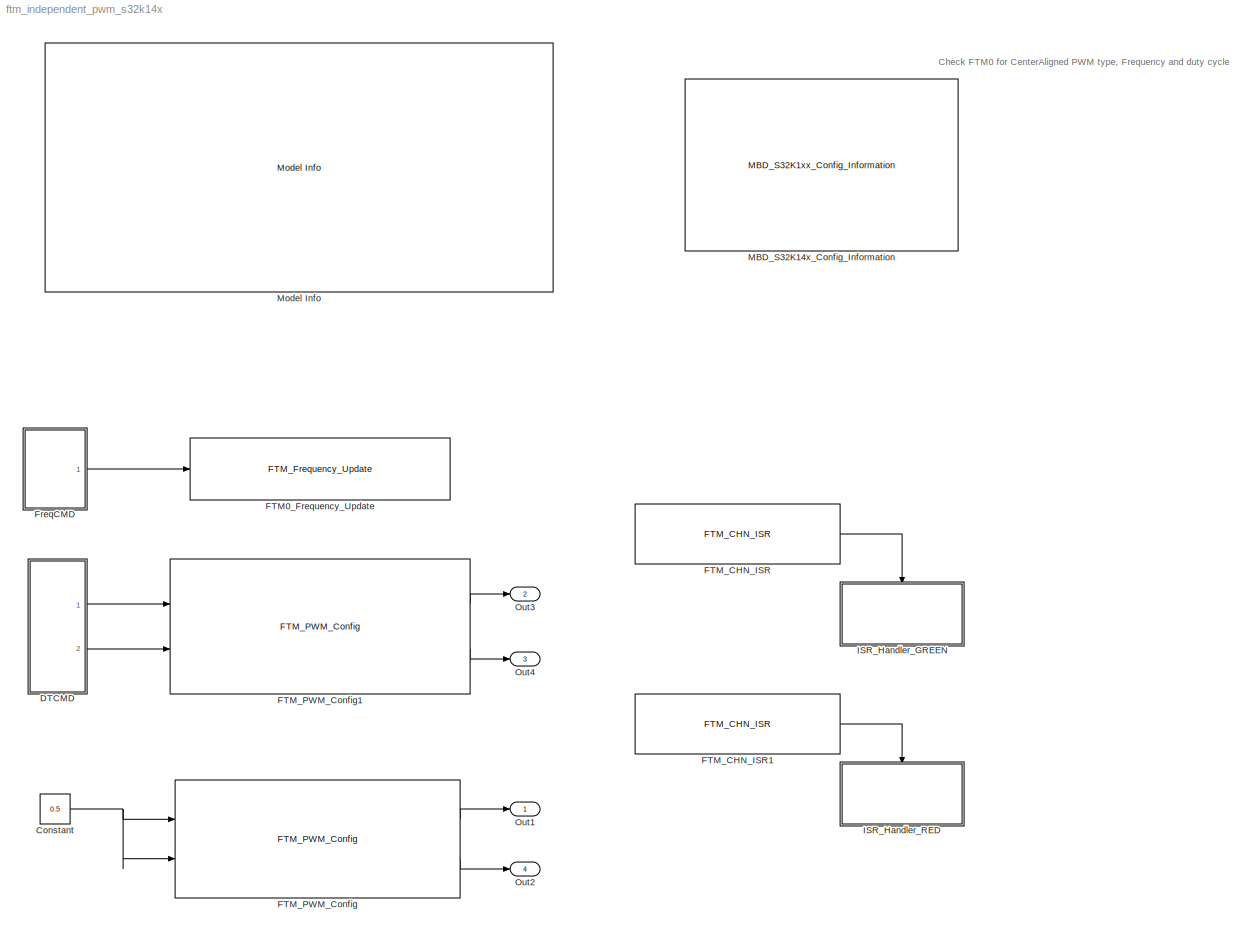
MODEL ftm_independent_pwm_s32k14x
KIND model
CONFIG InitFcn = mbd_s32k_consistency_checks(bdroot(gcs));
BLOCK [Constant] Constant
  OutDataTypeStr = single
  SID = 176
  Value = 0.5
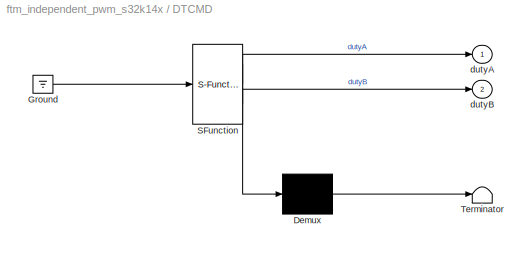
BLOCK [SubSystem] DTCMD
  ErrorFcn = Stateflow.Translate.translate
  PermitHierarchicalResolution = ExplicitOnly
  Ports = [0, 2]
  Priority = 0
  RequestExecContextInheritance = off
  SFBlockType = Chart
  SID = 91
  TreatAsAtomicUnit = on
  Variant = off
BLOCK [Demux] DTCMD/ Demux 
  Outputs = 1
  Ports = [1, 1]
  SID = 91::69
BLOCK [Ground] DTCMD/ Ground 
  SID = 91::71
BLOCK [S-Function] DTCMD/ SFunction 
  EnableBusSupport = off
  FunctionName = sf_sfun
  PortCounts = [1 3]
  Ports = [1, 3]
  SFcnIsStateOwnerBlock = off
  SFunctionDeploymentMode = off
  SID = 91::68
  Tag = Stateflow S-Function ftm_independent_pwm_s32k14x 3
BLOCK [Terminator] DTCMD/ Terminator 
  SID = 91::70
BLOCK [Outport] DTCMD/dutyA
  IconDisplay = Port number
  SID = 91::6
BLOCK [Outport] DTCMD/dutyB
  IconDisplay = Port number
  Port = 2
  SID = 91::7
BLOCK [Reference] FTM0_Frequency_Update  REF=mbd_s32k1xx_ec_toolbox/Motor Control Blocks/FTM Blocks/FTM_Frequency_Update
  Ports = [1]
  Priority = 1
  SID = 93
  SourceBlock = mbd_s32k1xx_ec_toolbox/Motor Control Blocks/FTM Blocks/FTM_Frequency_Update
  SourceType = FTM_s32k_freq_update_block
  ftmModule = 0
  ftmPwmUnits = Hz
  mcuTargetUpdate = on
BLOCK [Reference] FTM_CHN_ISR  REF=mbd_s32k1xx_ec_toolbox/Motor Control Blocks/FTM Blocks/FTM_CHN_ISR
  Ports = [0, 1]
  Priority = 10
  SID = 104
  SourceBlock = mbd_s32k1xx_ec_toolbox/Motor Control Blocks/FTM Blocks/FTM_CHN_ISR
  SourceType = FTM_s32k_chn_isr_block
  channel = 0
  ftmModule = 0
  isrlevel = 1
  mcuTargetUpdate = on
BLOCK [Reference] FTM_CHN_ISR1  REF=mbd_s32k1xx_ec_toolbox/Motor Control Blocks/FTM Blocks/FTM_CHN_ISR
  Ports = [0, 1]
  Priority = 10
  SID = 112
  SourceBlock = mbd_s32k1xx_ec_toolbox/Motor Control Blocks/FTM Blocks/FTM_CHN_ISR
  SourceType = FTM_s32k_chn_isr_block
  channel = 2
  ftmModule = 3
  isrlevel = 2
  mcuTargetUpdate = on
BLOCK [Reference] FTM_PWM_Config  REF=mbd_s32k1xx_ec_toolbox/Motor Control Blocks/FTM Blocks/FTM_PWM_Config
  Ports = [2, 2]
  Priority = 1
  SID = 137
  SourceBlock = mbd_s32k1xx_ec_toolbox/Motor Control Blocks/FTM Blocks/FTM_PWM_Config
  SourceType = FTM_s32k_pwm_config_block
  chTrigger0 = on
  chTrigger1 = off
  chTrigger2 = on
  chTrigger3 = off
  chTrigger4 = off
  chTrigger5 = off
  chTrigger6 = off
  chTrigger7 = off
  chan0En = off
  chan0Type = Independent
  chan2En = on
  chan2Type = Independent
  chan4En = off
  chan4Type = Independent
  chan6En = off
  chan6Type = Independent
  chnMatch0 = off
  chnMatch1 = off
  chnMatch2 = off
  chnMatch3 = off
  chnMatch4 = off
  chnMatch5 = off
  chnMatch6 = off
  chnMatch7 = off
  deadtimeNs = 1000
  deadtimePrescaler = Divide by 4
  deadtimeTicks = 20
  deadtimeUnits = Nanoseconds
  dutyCycleCh0 = 0.5
  dutyCycleCh1 = 0.1
  dutyCycleCh2 = 0.25
  dutyCycleCh3 = 0.25
  dutyCycleCh4 = 0.25
  dutyCycleCh5 = 0.25
  dutyCycleCh6 = 0.25
  dutyCycleCh7 = 0.25
  dutyCycleSim = on
  fault_disen_0 = off
  fault_disen_1 = off
  fault_disen_2 = off
  fault_disen_3 = off
  fault_filter_0 = off
  fault_filter_1 = off
  fault_filter_2 = off
  fault_filter_3 = off
  fault_pin_0 = None
  fault_pin_1 = None
  fault_pin_2 = None
  fault_pin_3 = None
  fault_polarity_0 = Active Low
  fault_polarity_1 = Active high
  fault_polarity_2 = Active high
  fault_polarity_3 = Active high
  ftmMode = Edge-Aligned PWM
  ftmModule = 3
  ftmPeriod = 25000
  ftmPrescaler = Divide by 64
  ftmPwmUnits = Hz
  ftmSourceClock = 80 MHz
  initTrigger = off
  mcuTargetUpdate = on
  outFrequency = 50
  outputComplem0 = Main duplicated
  outputComplem2 = Main duplicated
  outputComplem4 = Main duplicated
  outputComplem6 = Main duplicated
  outputLevel0 = Low
  outputLevel1 = Low
  outputLevel2 = Low
  outputLevel3 = Low
  outputLevel4 = Low
  outputLevel5 = Low
  outputLevel6 = Low
  outputLevel7 = Low
  pinFtmCh0 = PTA2: [FTM3_CH0 | FTM Channel]
  pinFtmCh1 = None
  pinFtmCh2 = PTB10: [FTM3_CH2 | FTM Channel]
  pinFtmCh3 = PTB11: [FTM3_CH3 | FTM Channel]
  pinFtmCh4 = PTC10: [FTM3_CH4 | FTM Channel]
  pinFtmCh5 = None
  pinFtmCh6 = PTC12: [FTM3_CH6 | FTM Channel]
  pinFtmCh7 = None
  pinPolCh0 = Active High
  pinPolCh1 = Active Low
  pinPolCh2 = Active High
  pinPolCh3 = Active Low
  pinPolCh4 = Active High
  pinPolCh5 = Active Low
  pinPolCh6 = Active Low
  pinPolCh7 = Active Low
  pwmFaultClearing = Automatic Fault control for all channels
  pwmFaultFilterValue = 2
  pwmFaultInterrupt = off
  pwmFaultPinState = Safe Value
  pwmFaultPriority = 0
  pwmFaultProtection = off
  pwmSyncAutoClear = on
  pwmSyncCounterInitial = System Clock
  pwmSyncHwRouting = TRGMUX_FTM7
  pwmSyncInvert = System Clock
  pwmSyncMaxLoad = on
  pwmSyncMinLoad = on
  pwmSyncOutControl = System Clock
  pwmSyncOutMask = System Clock
  pwmSyncPoints = Update now
  pwmSyncTrg = Software trigger
  pwmSyncTrg0 = on
  pwmSyncTrg1 = on
  pwmSyncTrg2 = on
  reloadEnable = off
  reloadFrequency = 0
  reloadHCR = 0
  reloadHalfCycle = off
  reloadPriority = 15
  showAdvOpt = on
  startAfterInit = on
  swcontrol_enable = off
BLOCK [Reference] FTM_PWM_Config1  REF=mbd_s32k1xx_ec_toolbox/Motor Control Blocks/FTM Blocks/FTM_PWM_Config
  Ports = [2, 2]
  Priority = 1
  SID = 168
  SourceBlock = mbd_s32k1xx_ec_toolbox/Motor Control Blocks/FTM Blocks/FTM_PWM_Config
  SourceType = FTM_s32k_pwm_config_block
  chTrigger0 = on
  chTrigger1 = off
  chTrigger2 = off
  chTrigger3 = off
  chTrigger4 = off
  chTrigger5 = off
  chTrigger6 = off
  chTrigger7 = off
  chan0En = on
  chan0Type = Independent
  chan2En = off
  chan2Type = Independent
  chan4En = off
  chan4Type = Independent
  chan6En = off
  chan6Type = Independent
  chnMatch0 = off
  chnMatch1 = off
  chnMatch2 = off
  chnMatch3 = off
  chnMatch4 = off
  chnMatch5 = off
  chnMatch6 = off
  chnMatch7 = off
  deadtimeNs = 1000
  deadtimePrescaler = Divide by 4
  deadtimeTicks = 20
  deadtimeUnits = Nanoseconds
  dutyCycleCh0 = 0.5
  dutyCycleCh1 = 0.1
  dutyCycleCh2 = 0
  dutyCycleCh3 = 0
  dutyCycleCh4 = 0.25
  dutyCycleCh5 = 0.25
  dutyCycleCh6 = 0.25
  dutyCycleCh7 = 0.25
  dutyCycleSim = on
  fault_disen_0 = off
  fault_disen_1 = off
  fault_disen_2 = off
  fault_disen_3 = off
  fault_filter_0 = off
  fault_filter_1 = off
  fault_filter_2 = off
  fault_filter_3 = off
  fault_pin_0 = None
  fault_pin_1 = None
  fault_pin_2 = None
  fault_pin_3 = None
  fault_polarity_0 = Active Low
  fault_polarity_1 = Active high
  fault_polarity_2 = Active high
  fault_polarity_3 = Active high
  ftmMode = Center-Aligned PWM
  ftmModule = 0
  ftmPeriod = 16000
  ftmPrescaler = Divide by 1
  ftmPwmUnits = Hz
  ftmSourceClock = 80 MHz
  initTrigger = off
  mcuTargetUpdate = on
  outFrequency = 5000
  outputComplem0 = Main duplicated
  outputComplem2 = Main duplicated
  outputComplem4 = Main duplicated
  outputComplem6 = Main duplicated
  outputLevel0 = Low
  outputLevel1 = Low
  outputLevel2 = Low
  outputLevel3 = Low
  outputLevel4 = Low
  outputLevel5 = Low
  outputLevel6 = Low
  outputLevel7 = Low
  pinFtmCh0 = PTC0: [FTM0_CH0 | FTM Channel]
  pinFtmCh1 = PTC1: [FTM0_CH1 | FTM Channel]
  pinFtmCh2 = PTB14: [FTM0_CH2 | FTM Channel]
  pinFtmCh3 = None
  pinFtmCh4 = PTB4: [FTM0_CH4 | FTM Channel]
  pinFtmCh5 = None
  pinFtmCh6 = PTA17: [FTM0_CH6 | FTM Channel]
  pinFtmCh7 = None
  pinPolCh0 = Active High
  pinPolCh1 = Active Low
  pinPolCh2 = Active High
  pinPolCh3 = Active Low
  pinPolCh4 = Active High
  pinPolCh5 = Active Low
  pinPolCh6 = Active Low
  pinPolCh7 = Active Low
  pwmFaultClearing = Automatic Fault control for all channels
  pwmFaultFilterValue = 2
  pwmFaultInterrupt = off
  pwmFaultPinState = Safe Value
  pwmFaultPriority = 0
  pwmFaultProtection = off
  pwmSyncAutoClear = on
  pwmSyncCounterInitial = System Clock
  pwmSyncHwRouting = TRGMUX_FTM7
  pwmSyncInvert = System Clock
  pwmSyncMaxLoad = on
  pwmSyncMinLoad = on
  pwmSyncOutControl = System Clock
  pwmSyncOutMask = System Clock
  pwmSyncPoints = Update now
  pwmSyncTrg = Software trigger
  pwmSyncTrg0 = on
  pwmSyncTrg1 = on
  pwmSyncTrg2 = on
  reloadEnable = off
  reloadFrequency = 0
  reloadHCR = 0
  reloadHalfCycle = off
  reloadPriority = 15
  showAdvOpt = on
  startAfterInit = on
  swcontrol_enable = off
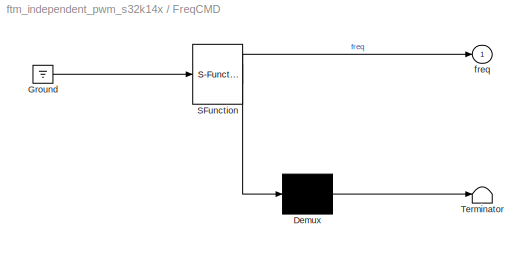
BLOCK [SubSystem] FreqCMD
  ErrorFcn = Stateflow.Translate.translate
  PermitHierarchicalResolution = ExplicitOnly
  Ports = [0, 1]
  Priority = 0
  RequestExecContextInheritance = off
  SFBlockType = Chart
  SID = 92
  TreatAsAtomicUnit = on
  Variant = off
BLOCK [Demux] FreqCMD/ Demux 
  Outputs = 1
  Ports = [1, 1]
  SID = 92::68
BLOCK [Ground] FreqCMD/ Ground 
  SID = 92::70
BLOCK [S-Function] FreqCMD/ SFunction 
  EnableBusSupport = off
  FunctionName = sf_sfun
  PortCounts = [1 2]
  Ports = [1, 2]
  SFcnIsStateOwnerBlock = off
  SFunctionDeploymentMode = off
  SID = 92::67
  Tag = Stateflow S-Function ftm_independent_pwm_s32k14x 2
BLOCK [Terminator] FreqCMD/ Terminator 
  SID = 92::69
BLOCK [Outport] FreqCMD/freq
  IconDisplay = Port number
  SID = 92::5
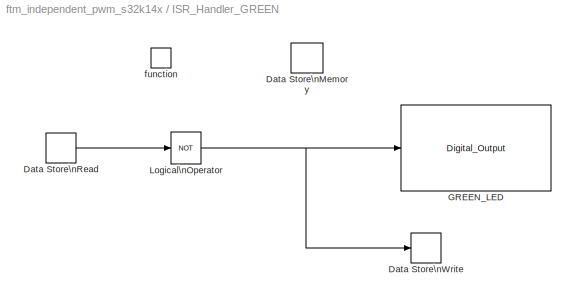
BLOCK [SubSystem] ISR_Handler_GREEN
  Ports = [0, 0, 0, 1]
  RequestExecContextInheritance = off
  SID = 105
  Variant = off
BLOCK [DataStoreMemory] ISR_Handler_GREEN/Data Store\nMemory
  OutDataTypeStr = boolean
  ReadBeforeWriteMsg = warning
  SID = 107
  ShowAdditionalParam = off
  WriteAfterReadMsg = warning
  WriteAfterWriteMsg = warning
BLOCK [DataStoreRead] ISR_Handler_GREEN/Data Store\nRead
  Ports = [0, 1]
  SID = 108
BLOCK [DataStoreWrite] ISR_Handler_GREEN/Data Store\nWrite
  Ports = [1]
  SID = 109
BLOCK [Reference] ISR_Handler_GREEN/GREEN_LED  REF=mbd_s32k1xx_ec_toolbox/GPIO Blocks/Digital_Output
  Ports = [1]
  SID = 110
  SourceBlock = mbd_s32k1xx_ec_toolbox/GPIO Blocks/Digital_Output
  SourceType = gpio_s32k_output
  drive_strength = High
  gpio_pin = PTD16: [PTD16 | Port D I/O]
  init_val = Low
BLOCK [Logic] ISR_Handler_GREEN/Logical\nOperator
  AllPortsSameDT = off
  Operator = NOT
  OutDataTypeStr = boolean
  Ports = [1, 1]
  SID = 111
BLOCK [TriggerPort] ISR_Handler_GREEN/function
  Ports = []
  SID = 106
  StatesWhenEnabling = held
  TriggerType = function-call
  VariantControl = Variant
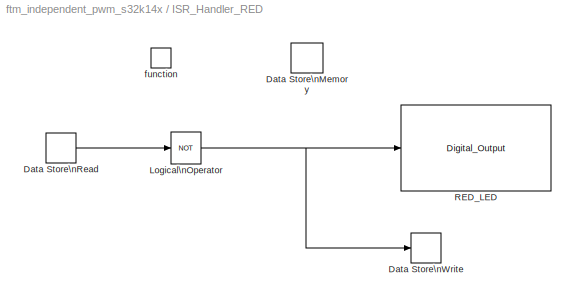
BLOCK [SubSystem] ISR_Handler_RED
  Ports = [0, 0, 0, 1]
  RequestExecContextInheritance = off
  SID = 113
  Variant = off
BLOCK [DataStoreMemory] ISR_Handler_RED/Data Store\nMemory
  DataStoreName = B
  OutDataTypeStr = boolean
  ReadBeforeWriteMsg = warning
  SID = 115
  ShowAdditionalParam = off
  WriteAfterReadMsg = warning
  WriteAfterWriteMsg = warning
BLOCK [DataStoreRead] ISR_Handler_RED/Data Store\nRead
  DataStoreName = B
  Ports = [0, 1]
  SID = 116
BLOCK [DataStoreWrite] ISR_Handler_RED/Data Store\nWrite
  DataStoreName = B
  Ports = [1]
  SID = 117
BLOCK [Logic] ISR_Handler_RED/Logical\nOperator
  AllPortsSameDT = off
  Operator = NOT
  OutDataTypeStr = boolean
  Ports = [1, 1]
  SID = 119
BLOCK [Reference] ISR_Handler_RED/RED_LED  REF=mbd_s32k1xx_ec_toolbox/GPIO Blocks/Digital_Output
  Ports = [1]
  SID = 118
  SourceBlock = mbd_s32k1xx_ec_toolbox/GPIO Blocks/Digital_Output
  SourceType = gpio_s32k_output
  drive_strength = High
  gpio_pin = PTD15: [PTD15 | Port D I/O]
  init_val = Low
BLOCK [TriggerPort] ISR_Handler_RED/function
  Ports = []
  SID = 114
  StatesWhenEnabling = held
  TriggerType = function-call
  VariantControl = Variant
BLOCK [Reference] MBD_S32K14x_Config_Information  REF=mbd_s32k1xx_ec_toolbox/MBD_S32K1xx_Config_Information
  ADC_PcrCheckEnDis = on
  AMMCLIB_PcrCheckEnDis = on
  CMP_PcrCheckEnDis = on
  CSEc_PcrCheckEnDis = on
  ConfigParams_PcrCheckEnDis = on
  FM_PcrCheckEnDis = on
  FTM_Dual_Edge_Inputs_PcrCheckEnDis = on
  FTM_Hall_Sensor_Inputs_PcrCheckEnDis = on
  FTM_Input_Edge_Inputs_PcrCheckEnDis = on
  FTM_PWM_PcrCheckEnDis = on
  FTM_Quadrature_Inputs_PcrCheckEnDis = on
  FlexCAN_PcrCheckEnDis = on
  FlexIO_PcrCheckEnDis = on
  GPIO_InputPcrCheckEnDis = on
  GPIO_OutputPcrCheckEnDis = on
  LIN_PcrCheckEnDis = on
  LPI2C_PcrCheckEnDis = on
  LPSPI_PcrCheckEnDis = on
  LPTMR_PcrCheckEnDis = on
  LPUART_PcrCheckEnDis = on
  ModelRef_PcrCheckEnDis = on
  PDB0_PcrCheckEnDis = on
  PIT_PcrCheckEnDis = on
  Ports = []
  Profile_PcrCheckEnDis = on
  RTC_PcrCheckEnDis = on
  SBC_PcrCheckEnDis = on
  SID = 1
  SourceBlock = mbd_s32k1xx_ec_toolbox/MBD_S32K1xx_Config_Information
  SourceType = MBDTBX_EC_S32K
  WDOG_PcrCheckEnDis = on
  config_params = []
  disp_str = Target : S32K142-16KB_SRAM\nPackage : 100-pin\nSystem clock : 80 MHz\nXTAL clock : External 8 MHz\nCompiler : GCC\nTarget Type : FLASH\nDownload Code after build : (OpenSDA: E)\nStep Tick Interrupt Priority : 15
  ds_import_enable = on
  eDMA_PcrCheckEnDis = on
  gcc_target_assemble_opts = -mcpu=cortex-m4 -mthumb -mfloat-abi=hard -mfpu=fpv4-sp-d16 -g
  gcc_target_compile_opts = -mcpu=cortex-m4 -mthumb -mfloat-abi=hard -mfpu=fpv4-sp-d16 -O1 -g -gstrict-dwarf
  gcc_target_default_lcf = on
  gcc_target_link_opts = -mcpu=cortex-m4 -mthumb -mfloat-abi=hard -mfpu=fpv4-sp-d16
  gcc_target_user_lcf = S32K144_64_flash.ld
  ghs_target_assemble_opts = -cpu=cortexm4f -fpu=vfpv4_d16
  ghs_target_compile_opts = -cpu=cortexm4f -thumb -DARM_MATH_CM4 -fpu=vfpv4_d16 -fsingle -Ogeneral -Wundef -Wimplicit-int -Wshadow -Wtrigraphs --no_commons --gnu_asm -gnu99 -gdwarf-2 -G
  ghs_target_default_lcf = off
  ghs_target_link_opts = -cpu=cortexm4f -thumb -fpu=vfpv4_d16
  ghs_target_user_lcf = S32K144_64_flash.ld
  iar_target_assemble_opts = --cpu Cortex-M4F --thumb --fpu VFPv4_sp
  iar_target_compile_opts = --cpu=Cortex-M4F --thumb --fpu=VFPv4_sp -Ol -e --debug --dlib_config normal
  iar_target_default_lcf = off
  iar_target_link_opts = --no_exceptions --vfe --inline
  iar_target_user_lcf = S32K144_64_flash.icf
  mbdt_ver = 0
  mcu_steptick_prio = 15
  mcu_steptick_timer = LPIT Channel 0
  mcu_system_clock_freq = 80
  mcu_target_name = S32K144
  mcu_target_package = 100-LQFP
  mcu_target_sram_size = 64KB
  mcu_xtal_freq = External 8
  pil_download_enable = off
  pil_download_rate = 57600
  pil_opensda_drive = Custom
  pil_opensda_drive_custom = E
  pil_uart_instance = 0
  pil_uart_rx = PTA2: [LPUART0_RX | Receive]
  pil_uart_tx = PTA3: [LPUART0_TX | Transmit]
  rbl_com_port = Custom
  rbl_com_port_custom = COM1
  rbl_download_enable = on
  rbl_download_interface = OpenSDA
  rbl_restart_request = off
  rbl_start_delay = 5000000
  target_compiler = GreenHills Multi
  target_memory = FLASH
BLOCK [Reference] Model Info  REF=simulink/Model-Wide\nUtilities/Model Info
  DisplayStringWithTags = Model Name: %<ModelName>\n\nDescription: %<Description>
  Frame = off
  HorizontalTextAlignment = Left
  LeftAlignmentValue = 0.02
  MaskDisplayString = Model Name: ftm_independent_pwm_s32k14x\\n\\nDescription: This sample shows how to use FTM module to generate PWM signals for the S32K144 MCUs.\\nThe model tests for PWM independent output mode.\\nThe model generates Center-Aligned PWM signals on Ch0 and Ch1 outputs of the FTM0\\nand Edge Aligned PWM signals on Ch0 and Ch1 outputs of the FTM3.\\n\\nValidation:\\nConnect pin J4.11 (PTC0)   to the s...<+683ch>
  Ports = []
  SID = 103
  SourceBlock = simulink/Model-Wide\nUtilities/Model Info
  SourceProductBaseCode = SL
  SourceProductName = Simulink
  SourceType = CMBlock
BLOCK [Outport] Out1
  IconDisplay = Port number
  SID = 138
BLOCK [Outport] Out2
  IconDisplay = Port number
  Port = 4
  SID = 175
BLOCK [Outport] Out3
  IconDisplay = Port number
  Port = 2
  SID = 170
BLOCK [Outport] Out4
  IconDisplay = Port number
  Port = 3
  SID = 171
ANNOTATION (root): \n \n Check FTM0 for CenterAligned PWM type, Frequency and duty cycle \n
NET Constant:1 -> FTM_PWM_Config:1, FTM_PWM_Config:2
LINE DTCMD/ Demux :1 -> DTCMD/ Terminator :1
LINE DTCMD/ Ground :1 -> DTCMD/ SFunction :1
LINE DTCMD/ SFunction :1 -> DTCMD/ Demux :1
LINE DTCMD/ SFunction :2 -> DTCMD/dutyA:1
LINE DTCMD/ SFunction :3 -> DTCMD/dutyB:1
LINE DTCMD:1 -> FTM_PWM_Config1:1
LINE DTCMD:2 -> FTM_PWM_Config1:2
LINE FTM_CHN_ISR1:1 -> ISR_Handler_RED:trigger
LINE FTM_CHN_ISR:1 -> ISR_Handler_GREEN:trigger
LINE FTM_PWM_Config1:1 -> Out3:1
LINE FTM_PWM_Config1:2 -> Out4:1
LINE FTM_PWM_Config:1 -> Out1:1
LINE FTM_PWM_Config:2 -> Out2:1
LINE FreqCMD/ Demux :1 -> FreqCMD/ Terminator :1
LINE FreqCMD/ Ground :1 -> FreqCMD/ SFunction :1
LINE FreqCMD/ SFunction :1 -> FreqCMD/ Demux :1
LINE FreqCMD/ SFunction :2 -> FreqCMD/freq:1
LINE FreqCMD:1 -> FTM0_Frequency_Update:1
LINE ISR_Handler_GREEN/Data Store\nRead:1 -> ISR_Handler_GREEN/Logical\nOperator:1
NET ISR_Handler_GREEN/Logical\nOperator:1 -> ISR_Handler_GREEN/Data Store\nWrite:1, ISR_Handler_GREEN/GREEN_LED:1
LINE ISR_Handler_RED/Data Store\nRead:1 -> ISR_Handler_RED/Logical\nOperator:1
NET ISR_Handler_RED/Logical\nOperator:1 -> ISR_Handler_RED/Data Store\nWrite:1, ISR_Handler_RED/RED_LED:1
note: NET lines group one-source signal fan-out (src -> all destinations, sorted); 1:1 wires keep LINE
CHART FreqCMD states=2 transitions=3
  STATE_LABEL 'A\\ndu:\\nfreq =20000;\\ncntr=cntr+1;'
  STATE_LABEL 'A1\\ndu:\\nfreq =5000;\\ncntr=cntr-1;'
CHART DTCMD states=2 transitions=3
  STATE_LABEL 'A\\ndu:\\ndutyA=0.25;\\ndutyB=0.75;\\ncntr=cntr+1;\\n'
  STATE_LABEL 'A1\\ndu:\\ndutyA=0.75;\\ndutyB=0.25;\\ncntr=cntr-1;\\n'
